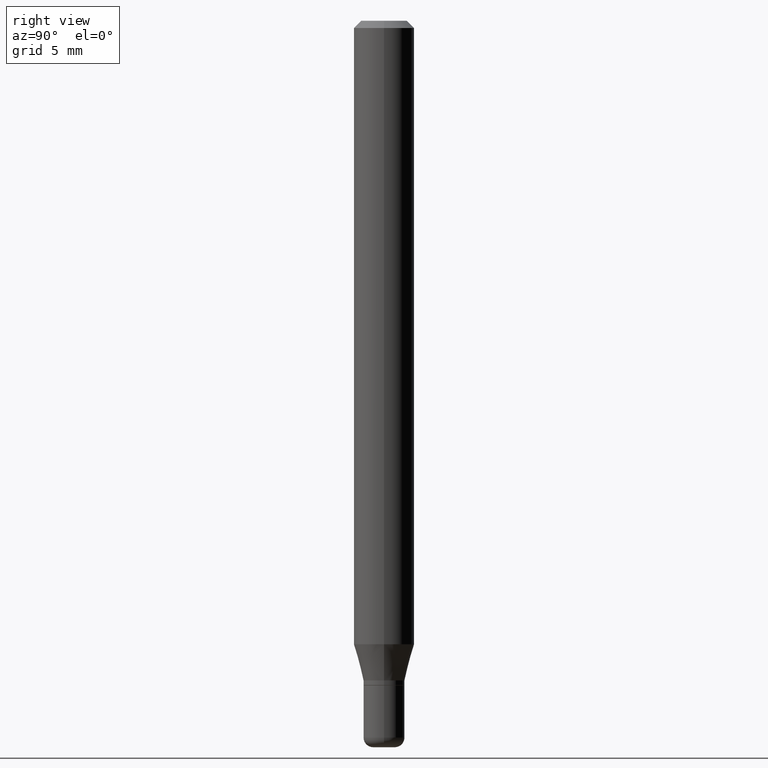
[diagram: clean part render]
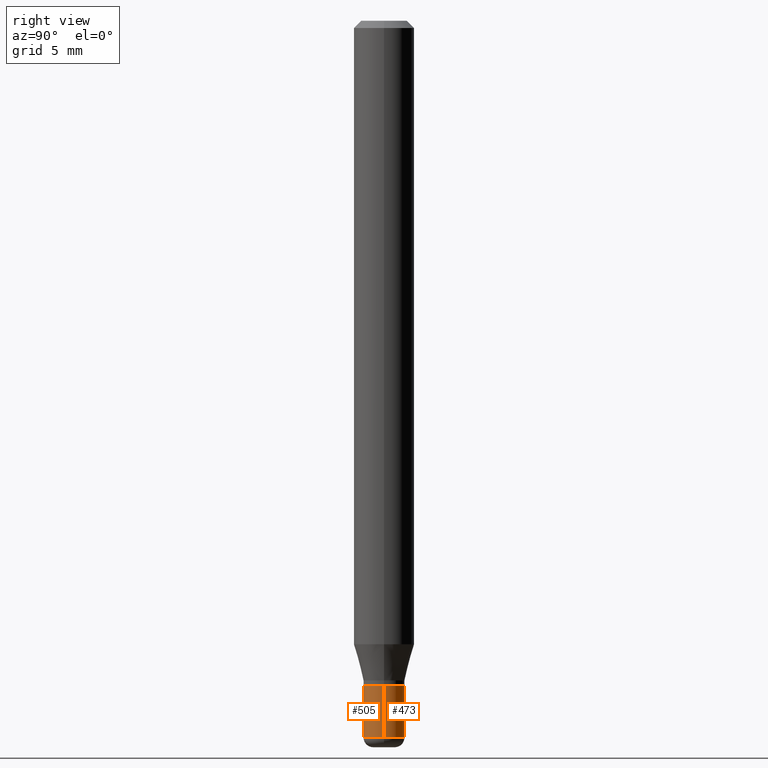
[diagram: same view with one multi-face feature highlighted, each face labeled with its STEP entity id]
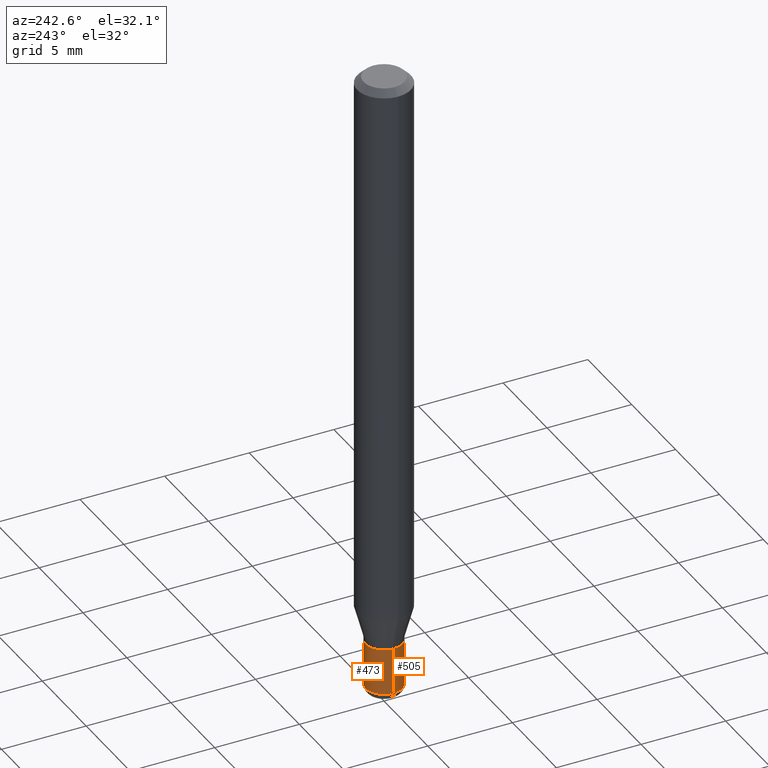
[diagram: same view with one multi-face feature highlighted, each face labeled with its STEP entity id]
A machine part, right view. The highlighted faces form ONE feature: a constant-radius fillet chain: 2 tangent blend faces with common blend radius 1.0795 mm. The faces share edges in the B-rep.
A second angle (auxiliary view) of the same feature is appended — it is thin or edge-on in the first view.
Their STEP definitions:
[1] entity #473 (Cylinder):
#9 = CYLINDRICAL_SURFACE ( 'NONE', #460, 0.04250000000000001693 ) ;
#11 = VERTEX_POINT ( 'NONE', #334 ) ;
#16 = ORIENTED_EDGE ( 'NONE', *, *, #129, .T. ) ;
#17 = DIRECTION ( 'NONE',  ( -2.445468806185136597E-29, 3.491481338843145583E-15, 1.000000000000000000 ) ) ;
#33 = LINE ( 'NONE', #517, #125 ) ;
#36 = VECTOR ( 'NONE', #319, 39.37007874015748143 ) ;
#41 = CARTESIAN_POINT ( 'NONE',  ( 3.619293833154002365E-29, -5.167392381487854879E-15, -1.479999999999999982 ) ) ;
#66 = CIRCLE ( 'NONE', #208, 0.04249999999999999611 ) ;
#82 = DIRECTION ( 'NONE',  ( 1.000000000000000000, -6.982962677686269866E-15, 0.000000000000000000 ) ) ;
#95 = AXIS2_PLACEMENT_3D ( 'NONE', #41, #478, #82 ) ;
#98 = VERTEX_POINT ( 'NONE', #362 ) ;
#113 = EDGE_CURVE ( 'NONE', #98, #370, #316, .T. ) ;
#117 = CARTESIAN_POINT ( 'NONE',  ( 0.04249999999999999611, -5.087088310694462559E-15, -1.372000000000000108 ) ) ;
#125 = VECTOR ( 'NONE', #477, 39.37007874015748143 ) ;
#129 = EDGE_CURVE ( 'NONE', #11, #98, #413, .T. ) ;
#149 = VERTEX_POINT ( 'NONE', #117 ) ;
#150 = DIRECTION ( 'NONE',  ( 1.000000000000000000, -6.982962677686276177E-15, 0.000000000000000000 ) ) ;
#162 = CARTESIAN_POINT ( 'NONE',  ( -0.04250000000000001693, 3.019806626980426993E-16, -2.090547413358335910E-30 ) ) ;
#187 = CARTESIAN_POINT ( 'NONE',  ( 3.355183202086007133E-29, -4.790312396892795908E-15, -1.372000000000000108 ) ) ;
#208 = AXIS2_PLACEMENT_3D ( 'NONE', #187, #17, #150 ) ;
#223 = ORIENTED_EDGE ( 'NONE', *, *, #239, .F. ) ;
#239 = EDGE_CURVE ( 'NONE', #149, #370, #66, .T. ) ;
#284 = CARTESIAN_POINT ( 'NONE',  ( 0.000000000000000000, 0.000000000000000000, 0.000000000000000000 ) ) ;
#316 = LINE ( 'NONE', #162, #36 ) ;
#318 = FACE_OUTER_BOUND ( 'NONE', #445, .T. ) ;
#319 = DIRECTION ( 'NONE',  ( -2.445468806185136877E-29, 3.491481338843145188E-15, 1.000000000000000000 ) ) ;
#334 = CARTESIAN_POINT ( 'NONE',  ( 0.04250000000000003081, -5.464168295289522318E-15, -1.479999999999999982 ) ) ;
#354 = DIRECTION ( 'NONE',  ( -2.445468806185136597E-29, 3.491481338843145583E-15, 1.000000000000000000 ) ) ;
#357 = DIRECTION ( 'NONE',  ( 1.000000000000000000, -6.982962677686266711E-15, 4.876176775795935793E-29 ) ) ;
#361 = ORIENTED_EDGE ( 'NONE', *, *, #448, .F. ) ;
#362 = CARTESIAN_POINT ( 'NONE',  ( -0.04250000000000003081, -4.676871726492283729E-15, -1.479999999999999982 ) ) ;
#370 = VERTEX_POINT ( 'NONE', #393 ) ;
#393 = CARTESIAN_POINT ( 'NONE',  ( -0.04249999999999999611, -4.676871726492283729E-15, -1.372000000000000108 ) ) ;
#403 = ORIENTED_EDGE ( 'NONE', *, *, #113, .T. ) ;
#413 = CIRCLE ( 'NONE', #95, 0.04250000000000003081 ) ;
#445 = EDGE_LOOP ( 'NONE', ( #16, #403, #223, #361 ) ) ;
#448 = EDGE_CURVE ( 'NONE', #11, #149, #33, .T. ) ;
#460 = AXIS2_PLACEMENT_3D ( 'NONE', #284, #354, #357 ) ;
#473 = ADVANCED_FACE ( 'NONE', ( #318 ), #9, .T. ) ;
#477 = DIRECTION ( 'NONE',  ( -2.445468806185136877E-29, 3.491481338843145188E-15, 1.000000000000000000 ) ) ;
#478 = DIRECTION ( 'NONE',  ( -2.445468806185136597E-29, 3.491481338843145583E-15, 1.000000000000000000 ) ) ;
#517 = CARTESIAN_POINT ( 'NONE',  ( 0.04250000000000001693, -2.967759138016664535E-16, 2.072375129713273553E-30 ) ) ;
[2] entity #505 (Cylinder):
#6 = DIRECTION ( 'NONE',  ( 1.000000000000000000, -6.982962677686266711E-15, 4.876176775795935793E-29 ) ) ;
#11 = VERTEX_POINT ( 'NONE', #334 ) ;
#33 = LINE ( 'NONE', #517, #125 ) ;
#36 = VECTOR ( 'NONE', #319, 39.37007874015748143 ) ;
#74 = EDGE_CURVE ( 'NONE', #98, #11, #271, .T. ) ;
#79 = CARTESIAN_POINT ( 'NONE',  ( 0.000000000000000000, 0.000000000000000000, 0.000000000000000000 ) ) ;
#84 = ORIENTED_EDGE ( 'NONE', *, *, #113, .F. ) ;
#98 = VERTEX_POINT ( 'NONE', #362 ) ;
#113 = EDGE_CURVE ( 'NONE', #98, #370, #316, .T. ) ;
#117 = CARTESIAN_POINT ( 'NONE',  ( 0.04249999999999999611, -5.087088310694462559E-15, -1.372000000000000108 ) ) ;
#125 = VECTOR ( 'NONE', #477, 39.37007874015748143 ) ;
#136 = DIRECTION ( 'NONE',  ( -2.445468806185136597E-29, 3.491481338843145583E-15, 1.000000000000000000 ) ) ;
#145 = CARTESIAN_POINT ( 'NONE',  ( 3.355183202086007133E-29, -4.790312396892795908E-15, -1.372000000000000108 ) ) ;
#149 = VERTEX_POINT ( 'NONE', #117 ) ;
#157 = AXIS2_PLACEMENT_3D ( 'NONE', #145, #136, #392 ) ;
#162 = CARTESIAN_POINT ( 'NONE',  ( -0.04250000000000001693, 3.019806626980426993E-16, -2.090547413358335910E-30 ) ) ;
#232 = FACE_OUTER_BOUND ( 'NONE', #247, .T. ) ;
#238 = ORIENTED_EDGE ( 'NONE', *, *, #74, .T. ) ;
#246 = CIRCLE ( 'NONE', #157, 0.04249999999999999611 ) ;
#247 = EDGE_LOOP ( 'NONE', ( #84, #238, #326, #427 ) ) ;
#255 = CARTESIAN_POINT ( 'NONE',  ( 3.619293833154002365E-29, -5.167392381487854879E-15, -1.479999999999999982 ) ) ;
#262 = EDGE_CURVE ( 'NONE', #370, #149, #246, .T. ) ;
#271 = CIRCLE ( 'NONE', #340, 0.04250000000000003081 ) ;
#272 = CYLINDRICAL_SURFACE ( 'NONE', #379, 0.04250000000000001693 ) ;
#316 = LINE ( 'NONE', #162, #36 ) ;
#319 = DIRECTION ( 'NONE',  ( -2.445468806185136877E-29, 3.491481338843145188E-15, 1.000000000000000000 ) ) ;
#326 = ORIENTED_EDGE ( 'NONE', *, *, #448, .T. ) ;
#334 = CARTESIAN_POINT ( 'NONE',  ( 0.04250000000000003081, -5.464168295289522318E-15, -1.479999999999999982 ) ) ;
#340 = AXIS2_PLACEMENT_3D ( 'NONE', #255, #425, #382 ) ;
#362 = CARTESIAN_POINT ( 'NONE',  ( -0.04250000000000003081, -4.676871726492283729E-15, -1.479999999999999982 ) ) ;
#370 = VERTEX_POINT ( 'NONE', #393 ) ;
#379 = AXIS2_PLACEMENT_3D ( 'NONE', #79, #399, #6 ) ;
#382 = DIRECTION ( 'NONE',  ( 1.000000000000000000, -6.982962677686269866E-15, 0.000000000000000000 ) ) ;
#392 = DIRECTION ( 'NONE',  ( 1.000000000000000000, -6.982962677686276177E-15, 0.000000000000000000 ) ) ;
#393 = CARTESIAN_POINT ( 'NONE',  ( -0.04249999999999999611, -4.676871726492283729E-15, -1.372000000000000108 ) ) ;
#399 = DIRECTION ( 'NONE',  ( -2.445468806185136597E-29, 3.491481338843145583E-15, 1.000000000000000000 ) ) ;
#425 = DIRECTION ( 'NONE',  ( -2.445468806185136597E-29, 3.491481338843145583E-15, 1.000000000000000000 ) ) ;
#427 = ORIENTED_EDGE ( 'NONE', *, *, #262, .F. ) ;
#448 = EDGE_CURVE ( 'NONE', #11, #149, #33, .T. ) ;
#477 = DIRECTION ( 'NONE',  ( -2.445468806185136877E-29, 3.491481338843145188E-15, 1.000000000000000000 ) ) ;
#505 = ADVANCED_FACE ( 'NONE', ( #232 ), #272, .T. ) ;
#517 = CARTESIAN_POINT ( 'NONE',  ( 0.04250000000000001693, -2.967759138016664535E-16, 2.072375129713273553E-30 ) ) ;